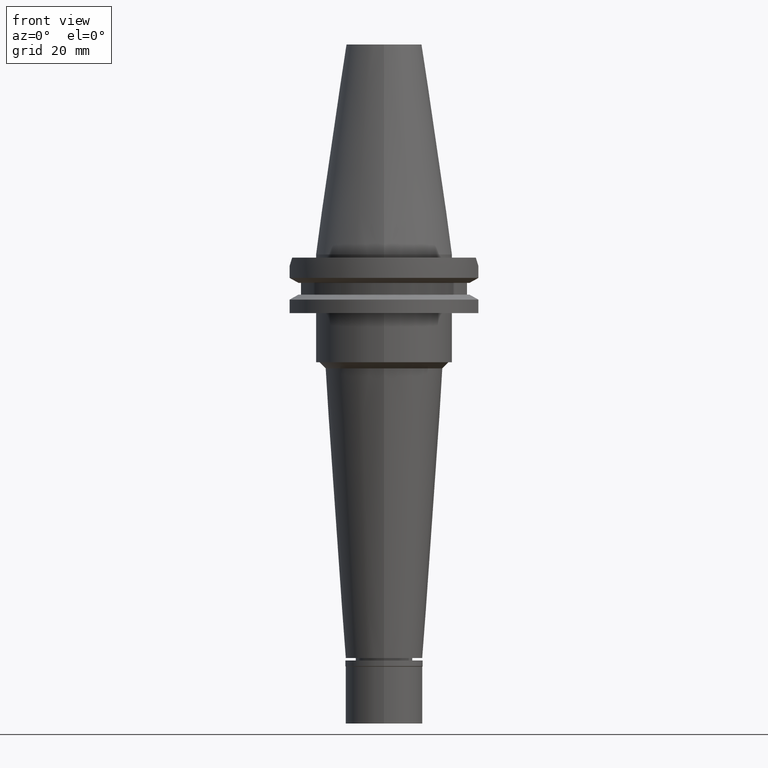
[diagram: clean part render]
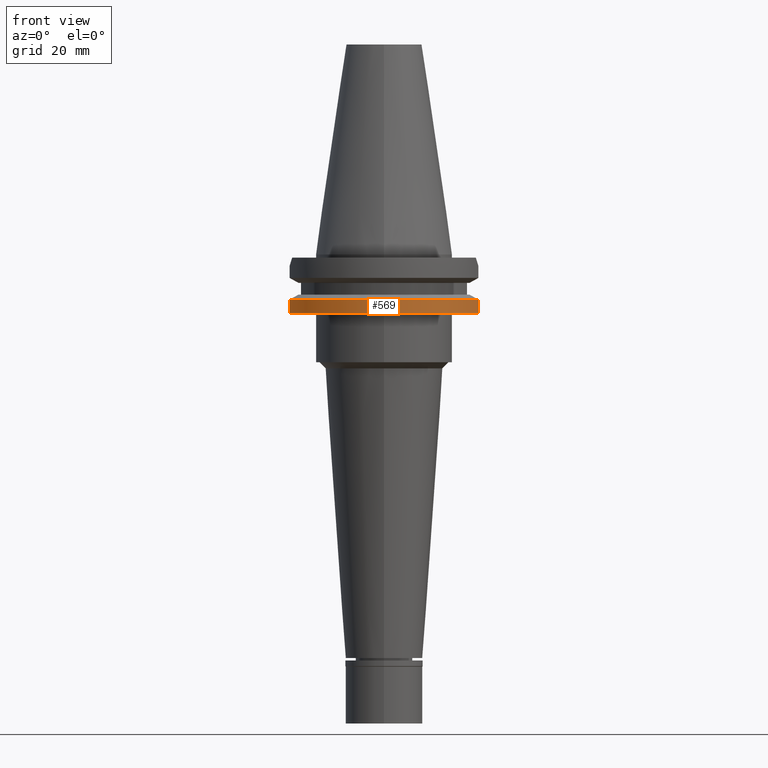
[diagram: same view with one face highlighted and labeled with its STEP entity id]
A machine part, front view. The second image highlights one B-rep face of the part: STEP entity #569.
In plain terms, the highlighted cylindrical surface (partial cylindrical patch) has radius 31.75 mm, axis along (0, 0, -1).
Its self-contained STEP definition (entity closure, byte-faithful):
#39 = DIRECTION ( 'NONE',  ( -7.570534385398997503E-09, 2.835481519064998920E-08, 0.9999999999999996669 ) ) ;
#71 = EDGE_CURVE ( 'NONE', #1466, #2430, #2736, .T. ) ;
#116 = CARTESIAN_POINT ( 'NONE',  ( 30.67550146538999911, -8.190000601169000305, -14.65184201425000055 ) ) ;
#168 = EDGE_CURVE ( 'NONE', #225, #2430, #806, .T. ) ;
#225 = VERTEX_POINT ( 'NONE', #2586 ) ;
#390 = EDGE_CURVE ( 'NONE', #225, #2641, #3189, .T. ) ;
#562 = EDGE_CURVE ( 'NONE', #1466, #2641, #3228, .T. ) ;
#563 = AXIS2_PLACEMENT_3D ( 'NONE', #1435, #2512, #1676 ) ;
#569 = ADVANCED_FACE ( 'NONE', ( #925 ), #673, .T. ) ;
#673 = CYLINDRICAL_SURFACE ( 'NONE', #563, 31.75000000000000000 ) ;
#709 = CARTESIAN_POINT ( 'NONE',  ( 0.0000000000000000000, 2.191780992603999821E-14, -19.05000000000000071 ) ) ;
#806 = CIRCLE ( 'NONE', #2553, 31.75000000000000000 ) ;
#834 = CARTESIAN_POINT ( 'NONE',  ( -30.67550162588999640, -8.189999999999999503, -19.05000000000000071 ) ) ;
#925 = FACE_OUTER_BOUND ( 'NONE', #1003, .T. ) ;
#1003 = EDGE_LOOP ( 'NONE', ( #1274, #1442, #2356, #1127 ) ) ;
#1127 = ORIENTED_EDGE ( 'NONE', *, *, #71, .F. ) ;
#1154 = CARTESIAN_POINT ( 'NONE',  ( 0.0000000000000000000, 1.055021971275999843E-14, -14.65183664206000103 ) ) ;
#1274 = ORIENTED_EDGE ( 'NONE', *, *, #562, .T. ) ;
#1426 = CARTESIAN_POINT ( 'NONE',  ( 30.67550146538999911, -8.190000601169000305, -14.65184201425000055 ) ) ;
#1435 = CARTESIAN_POINT ( 'NONE',  ( 0.0000000000000000000, 2.191780992603999821E-14, 78.97249999999999659 ) ) ;
#1442 = ORIENTED_EDGE ( 'NONE', *, *, #390, .F. ) ;
#1466 = VERTEX_POINT ( 'NONE', #116 ) ;
#1581 = DIRECTION ( 'NONE',  ( 0.0000000000000000000, -1.000000000000000000, 0.0000000000000000000 ) ) ;
#1676 = DIRECTION ( 'NONE',  ( 0.0000000000000000000, -1.000000000000000000, 0.0000000000000000000 ) ) ;
#1817 = AXIS2_PLACEMENT_3D ( 'NONE', #1154, #1971, #2972 ) ;
#1971 = DIRECTION ( 'NONE',  ( 0.0000000000000000000, 0.0000000000000000000, -1.000000000000000000 ) ) ;
#2067 = DIRECTION ( 'NONE',  ( 0.0000000000000000000, 0.0000000000000000000, 1.000000000000000000 ) ) ;
#2201 = VECTOR ( 'NONE', #39, 999.9999999999998863 ) ;
#2229 = VECTOR ( 'NONE', #3040, 1000.000000000000000 ) ;
#2347 = CARTESIAN_POINT ( 'NONE',  ( -30.67550165918999738, -8.189999875291000819, -14.65183552763999941 ) ) ;
#2356 = ORIENTED_EDGE ( 'NONE', *, *, #168, .T. ) ;
#2430 = VERTEX_POINT ( 'NONE', #3356 ) ;
#2512 = DIRECTION ( 'NONE',  ( 0.0000000000000000000, 0.0000000000000000000, -1.000000000000000000 ) ) ;
#2553 = AXIS2_PLACEMENT_3D ( 'NONE', #709, #2067, #1581 ) ;
#2586 = CARTESIAN_POINT ( 'NONE',  ( -30.67550162588999640, -8.189999999999999503, -19.05000000000000071 ) ) ;
#2641 = VERTEX_POINT ( 'NONE', #2347 ) ;
#2736 = LINE ( 'NONE', #1426, #2229 ) ;
#2972 = DIRECTION ( 'NONE',  ( 0.9661575315241073270, -0.2579527559055020958, 0.0000000000000000000 ) ) ;
#3040 = DIRECTION ( 'NONE',  ( 3.649359055784928567E-08, 1.366865884219972400E-07, -0.9999999999999900080 ) ) ;
#3189 = LINE ( 'NONE', #834, #2201 ) ;
#3228 = CIRCLE ( 'NONE', #1817, 31.74999999999998579 ) ;
#3356 = CARTESIAN_POINT ( 'NONE',  ( 30.67550162588999640, -8.189999999999999503, -19.05000000000000071 ) ) ;